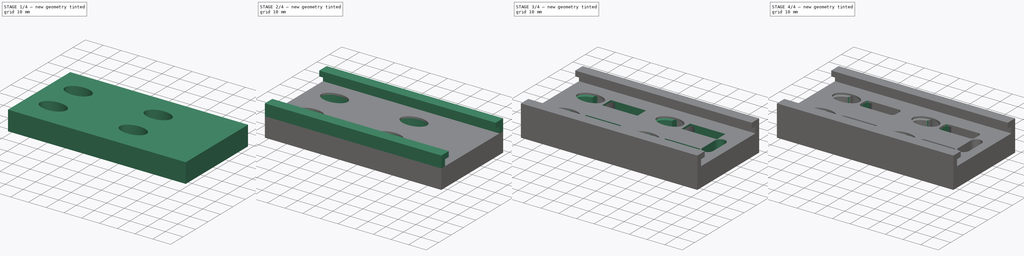
[diagram: build sequence overview — one tinted view per stage of 4, left to right]
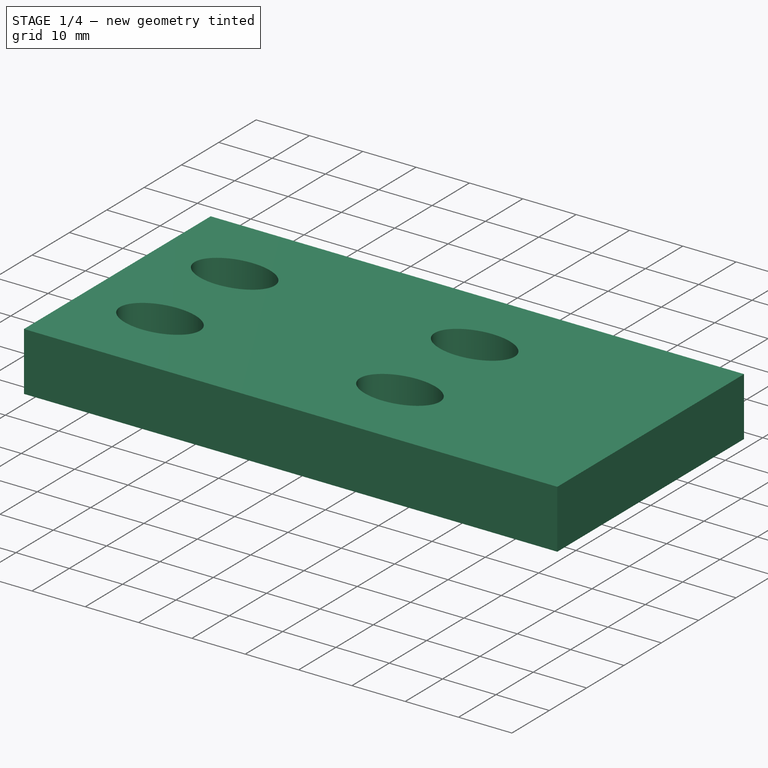
[diagram: stage 1 of 4 — iso view after this stage's code; geometry added in this stage tinted green]
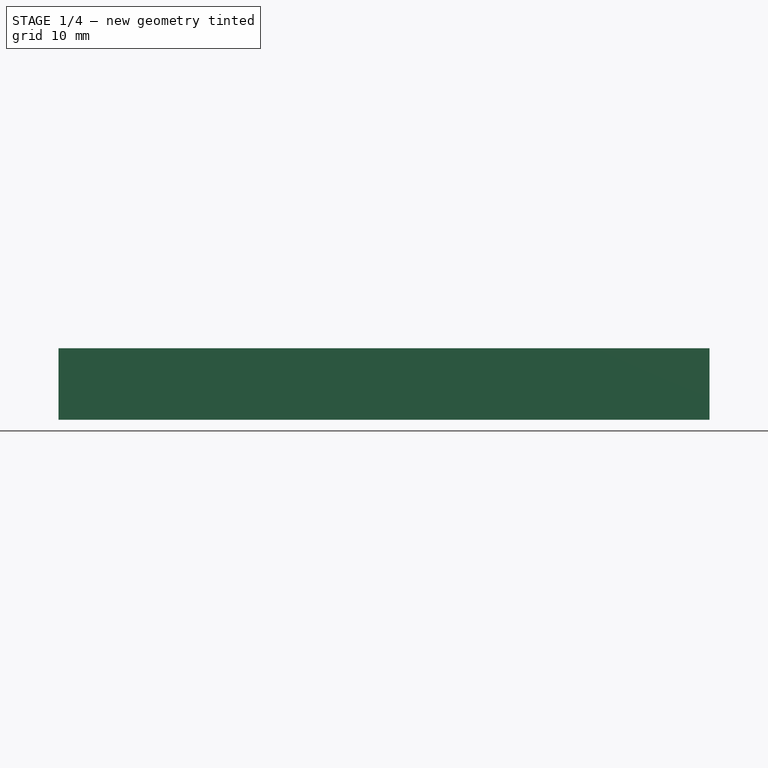
[diagram: stage 1 of 4 — front view after this stage's code; geometry added in this stage tinted green]
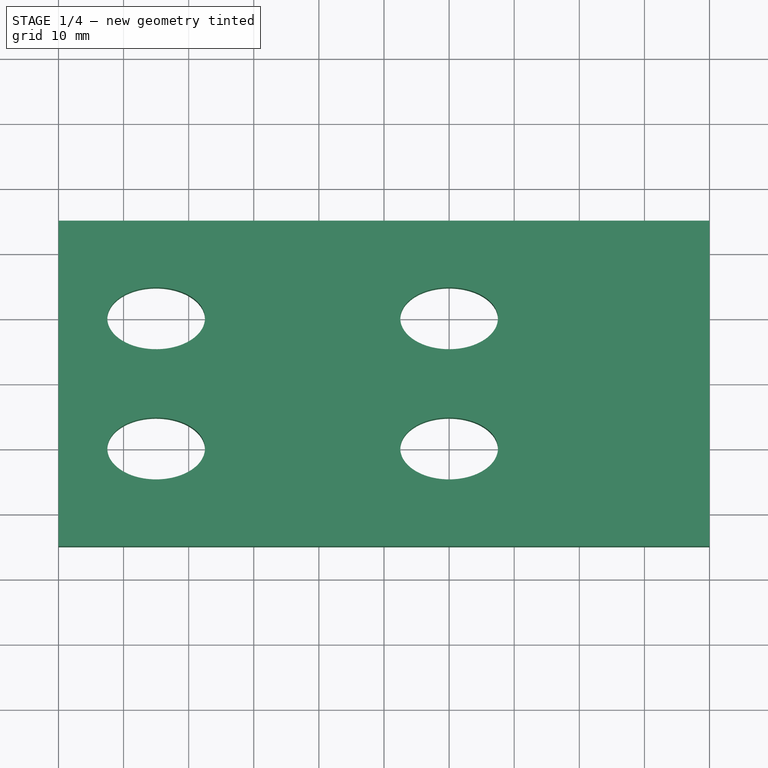
[diagram: stage 1 of 4 — top view after this stage's code; geometry added in this stage tinted green]
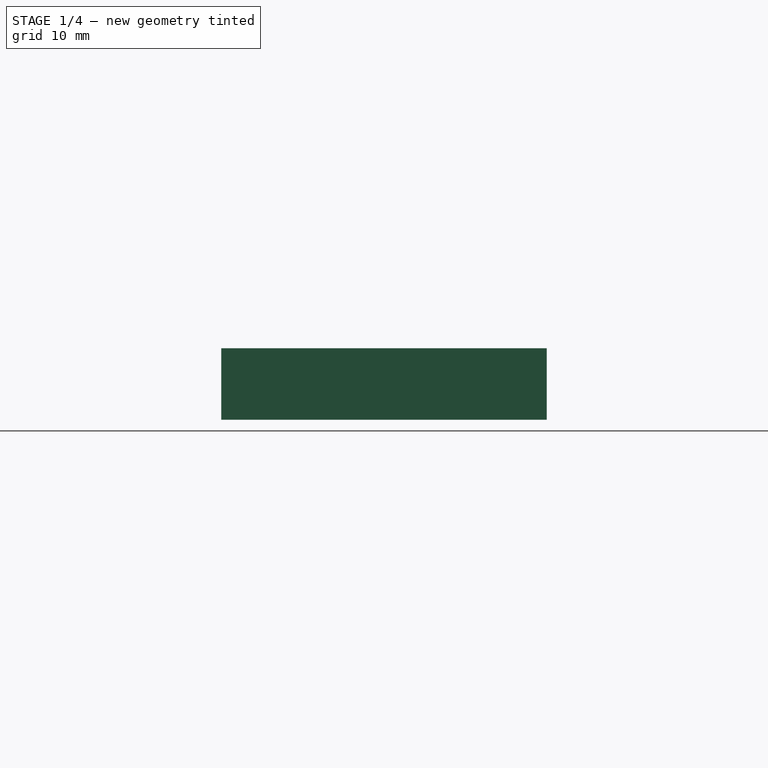
[diagram: stage 1 of 4 — right view after this stage's code; geometry added in this stage tinted green]
FCSTD DOCUMENT  (FreeCAD 0.21R33668 +26 (Git))
Label: bushing_jig_top3
License: All rights reserved
LicenseURL: https://en.wikipedia.org/wiki/All_rights_reserved
objects: Sketcher::SketchObject×8, PartDesign::Pad×4, PartDesign::Pocket×4, PartDesign::Plane×3, PartDesign::Mirrored×1, PartDesign::Fillet×1, PartDesign::Body×1
note: 31 computed .brp shape members not serialized (recipe doc carries the construction recipe); baked Part::Feature solids carry a one-line shape summary decoded from their .brp

FEATURE [Sketcher::SketchObject] Sketch
  FullyConstrained = true
  MapMode = 5
  Support = -> [XY_Plane]
  sketch-geometry (5):
    g0: LineSegment StartX=-50 StartY=-25 StartZ=0 EndX=-50 EndY=25 EndZ=0
    g1: LineSegment StartX=-50 StartY=25 StartZ=0 EndX=50 EndY=25 EndZ=0
    g2: LineSegment StartX=50 StartY=25 StartZ=0 EndX=50 EndY=-25 EndZ=0
    g3: LineSegment StartX=50 StartY=-25 StartZ=0 EndX=-50 EndY=-25 EndZ=0
    g4: GeomPoint X=0 Y=0 Z=0
  constraints (12):
    c: Coincident(g0,g1)
    c: Coincident(g1,g2)
    c: Coincident(g2,g3)
    c: Coincident(g3,g0)
    c: Horizontal(g1)
    c: Horizontal(g3)
    c: Vertical(g0)
    c: Vertical(g2)
    c: Symmetric(g1,g0,g4)
    c: Coincident(g4,g-1)
    c: DistanceX(g1,g1) = 100
    c: DistanceY(g2,g2) = 50
FEATURE [PartDesign::Pad] Pad
  Direction = (0,0,1)
  Length = 11
  Length2 = 10
  Profile = -> Sketch
  ReferenceAxis = -> Sketch [N_Axis]
  Reversed = true
  Type = 0
FEATURE [Sketcher::SketchObject] Sketch001
  FullyConstrained = true
  MapMode = 5
  Support = -> [XY_Plane]
  sketch-geometry (24):
    g0: Ellipse CenterX=-35 CenterY=10 CenterZ=0 NormalX=0 NormalY=0 NormalZ=1 MajorRadius=7.5 MinorRadius=4.75 AngleXU=0
    g1: LineSegment StartX=-27.5 StartY=10 StartZ=0 EndX=-42.5 EndY=10 EndZ=0
    g2: LineSegment StartX=-35 StartY=14.75 StartZ=0 EndX=-35 EndY=5.25 EndZ=0
    g3: GeomPoint X=-29.1959 Y=10 Z=0
    g4: GeomPoint X=-40.8041 Y=10 Z=0
    g5: Ellipse CenterX=10 CenterY=10 CenterZ=0 NormalX=0 NormalY=0 NormalZ=1 MajorRadius=7.5 MinorRadius=4.75 AngleXU=0
    g6: LineSegment StartX=17.5 StartY=10 StartZ=0 EndX=2.5 EndY=10 EndZ=0
    g7: LineSegment StartX=10 StartY=14.75 StartZ=0 EndX=10 EndY=5.25 EndZ=0
    g8: GeomPoint X=15.8041 Y=10 Z=0
    g9: GeomPoint X=4.19591 Y=10 Z=0
    g10: LineSegment StartX=-35 StartY=10 StartZ=0 EndX=10 EndY=10 EndZ=0
    g11: Ellipse CenterX=-35 CenterY=-10 CenterZ=0 NormalX=0 NormalY=0 NormalZ=1 MajorRadius=7.5 MinorRadius=4.75 AngleXU=0
    g12: LineSegment StartX=-27.5 StartY=-10 StartZ=0 EndX=-42.5 EndY=-10 EndZ=0
    g13: LineSegment StartX=-35 StartY=-5.25 StartZ=0 EndX=-35 EndY=-14.75 EndZ=0
    g14: GeomPoint X=-29.1959 Y=-10 Z=0
    g15: GeomPoint X=-40.8041 Y=-10 Z=0
    g16: LineSegment StartX=-35 StartY=10 StartZ=0 EndX=-35 EndY=-10 EndZ=0
    g17: Ellipse CenterX=10 CenterY=-10 CenterZ=0 NormalX=0 NormalY=0 NormalZ=1 MajorRadius=7.5 MinorRadius=4.75 AngleXU=0
    g18: LineSegment StartX=17.5 StartY=-10 StartZ=0 EndX=2.5 EndY=-10 EndZ=0
    g19: LineSegment StartX=10 StartY=-5.25 StartZ=0 EndX=10 EndY=-14.75 EndZ=0
    g20: GeomPoint X=15.8041 Y=-10 Z=0
    g21: GeomPoint X=4.19591 Y=-10 Z=0
    g22: LineSegment StartX=-35 StartY=-10 StartZ=0 EndX=10 EndY=-10 EndZ=0
    g23: GeomPoint X=10 Y=0 Z=0
  constraints (31):
    c: InternalAlignment(g1-g4 -> g0) x4
    c: Horizontal(g1)
    c: DistanceY(g2,g2) = 9.5
    c: DistanceX(g1,g1) = 15
    c: InternalAlignment(g6-g9 -> g5) x4
    c: Horizontal(g6)
    c: Equal(g2,g7) = 9.5
    c: Equal(g1,g6) = 15
    c: Coincident(g0,g10)
    c: Coincident(g5,g10)
    c: Distance(g10) = 45
    c: Angle(g10) = 0
    c: InternalAlignment(g12-g15 -> g11) x4
    c: Horizontal(g12)
    c: Equal(g2,g13) = 9.5
    c: Equal(g1,g12) = 15
    c: Coincident(g0,g16)
    c: Coincident(g11,g16)
    c: Distance(g16) = 20
    c: Perpendicular(g16,g10)
    c: InternalAlignment(g18-g21 -> g17) x4
    c: Horizontal(g18)
    c: Equal(g2,g19) = 9.5
    c: Equal(g1,g18) = 15
    c: Coincident(g11,g22)
    c: Coincident(g17,g22)
    c: Equal(g10,g22)
    c: Parallel(g22,g10)
    c: PointOnObject(g23,g-1)
    c: Symmetric(g5,g17,g23)
    c: DistanceX(g-1,g5) = 10
FEATURE [PartDesign::Plane] DatumPlane
  AttachmentOffset = pos=(0,0,-11) rot=(0,0,1;0rad)
  Length = 114.142
  MapMode = 5
  Placement = pos=(0,0,-11) rot=(0,0,1;0rad)
  ResizeMode = 0
  Support = -> [XY_Plane]
  Width = 64.1421
FEATURE [Sketcher::SketchObject] Sketch003
  FullyConstrained = true
  MapMode = 5
  Placement = pos=(0,0,-11) rot=(0,0,1;0rad)
  Support = -> [DatumPlane]
  sketch-geometry (24):
    g0: Ellipse CenterX=-35 CenterY=10 CenterZ=0 NormalX=0 NormalY=0 NormalZ=1 MajorRadius=12.5 MinorRadius=8.5 AngleXU=0
    g1: LineSegment StartX=-22.5 StartY=10 StartZ=0 EndX=-47.5 EndY=10 EndZ=0
    g2: LineSegment StartX=-35 StartY=18.5 StartZ=0 EndX=-35 EndY=1.5 EndZ=0
    g3: GeomPoint X=-25.8348 Y=10 Z=0
    g4: GeomPoint X=-44.1652 Y=10 Z=0
    g5: Ellipse CenterX=10 CenterY=10 CenterZ=0 NormalX=0 NormalY=0 NormalZ=1 MajorRadius=12.5 MinorRadius=8.5 AngleXU=0
    g6: LineSegment StartX=22.5 StartY=10 StartZ=0 EndX=-2.5 EndY=10 EndZ=0
    g7: LineSegment StartX=10 StartY=18.5 StartZ=0 EndX=10 EndY=1.5 EndZ=0
    g8: GeomPoint X=19.1652 Y=10 Z=0
    g9: GeomPoint X=0.834849 Y=10 Z=0
    g10: LineSegment StartX=-35 StartY=10 StartZ=0 EndX=10 EndY=10 EndZ=0
    g11: Ellipse CenterX=-35 CenterY=-10 CenterZ=0 NormalX=0 NormalY=0 NormalZ=1 MajorRadius=12.5 MinorRadius=8.5 AngleXU=0
    g12: LineSegment StartX=-22.5 StartY=-10 StartZ=0 EndX=-47.5 EndY=-10 EndZ=0
    g13: LineSegment StartX=-35 StartY=-1.5 StartZ=0 EndX=-35 EndY=-18.5 EndZ=0
    g14: GeomPoint X=-25.8348 Y=-10 Z=0
    g15: GeomPoint X=-44.1652 Y=-10 Z=0
    g16: LineSegment StartX=-35 StartY=10 StartZ=0 EndX=-35 EndY=-10 EndZ=0
    g17: Ellipse CenterX=10 CenterY=-10 CenterZ=0 NormalX=0 NormalY=0 NormalZ=1 MajorRadius=12.5 MinorRadius=8.5 AngleXU=0
    g18: LineSegment StartX=22.5 StartY=-10 StartZ=0 EndX=-2.5 EndY=-10 EndZ=0
    g19: LineSegment StartX=10 StartY=-1.5 StartZ=0 EndX=10 EndY=-18.5 EndZ=0
    g20: GeomPoint X=19.1652 Y=-10 Z=0
    g21: GeomPoint X=0.834849 Y=-10 Z=0
    g22: LineSegment StartX=-35 StartY=-10 StartZ=0 EndX=10 EndY=-10 EndZ=0
    g23: GeomPoint X=10 Y=0 Z=0
  constraints (31):
    c: InternalAlignment(g1-g4 -> g0) x4
    c: Horizontal(g1)
    c: DistanceX(g1,g1) = 25
    c: DistanceY(g2,g2) = 17
    c: InternalAlignment(g6-g9 -> g5) x4
    c: Horizontal(g6)
    c: Equal(g1,g6) = 23
    c: Equal(g2,g7) = 16.5
    c: Coincident(g0,g10)
    c: Coincident(g5,g10)
    c: Distance(g10) = 45
    c: Angle(g10) = 0
    c: InternalAlignment(g12-g15 -> g11) x4
    c: Horizontal(g12)
    c: Equal(g1,g12) = 23
    c: Equal(g2,g13) = 16.5
    c: Coincident(g0,g16)
    c: Coincident(g11,g16)
    c: Distance(g16) = 20
    c: Perpendicular(g16,g10)
    c: InternalAlignment(g18-g21 -> g17) x4
    c: Horizontal(g18)
    c: Equal(g1,g18) = 23
    c: Equal(g2,g19) = 16.5
    c: Coincident(g11,g22)
    c: Coincident(g17,g22)
    c: Equal(g10,g22)
    c: Parallel(g22,g10)
    c: PointOnObject(g23,g-1)
    c: Symmetric(g5,g17,g23)
    c: DistanceX(g-1,g5) = 10
FEATURE [Sketcher::SketchObject] Sketch005
  FullyConstrained = true
  MapMode = 5
  Placement = pos=(0,0,0) rot=(0.57735,0.57735,0.57735;2.0944rad)
  Support = -> [YZ_Plane]
  sketch-geometry (6):
    g0: LineSegment StartX=25 StartY=0 StartZ=0 EndX=25 EndY=6.6 EndZ=0
    g1: LineSegment StartX=25 StartY=6.6 StartZ=0 EndX=19 EndY=6.6 EndZ=0
    g2: LineSegment StartX=19 StartY=6.6 StartZ=0 EndX=19 EndY=3.6 EndZ=0
    g3: LineSegment StartX=19 StartY=3.6 StartZ=0 EndX=22 EndY=3.6 EndZ=0
    g4: LineSegment StartX=22 StartY=3.6 StartZ=0 EndX=22 EndY=0 EndZ=0
    g5: LineSegment StartX=22 StartY=0 StartZ=0 EndX=25 EndY=0 EndZ=0
  constraints (19):
    c: PointOnObject(g0,g-1)
    c: Vertical(g0)
    c: Horizontal(g1)
    c: Coincident(g2,g1)
    c: Vertical(g2)
    c: Horizontal(g3)
    c: PointOnObject(g4,g-1)
    c: Coincident(g5,g4)
    c: Coincident(g5,g0)
    c: Vertical(g4)
    c: Coincident(g3,g4)
    c: Coincident(g1,g0)
    c: DistanceY(g2,g2) = 3
    c: Coincident(g3,g2)
    c: DistanceX(g5,g5) = 3
    c: DistanceX(g1,g1) = 6
    c: DistanceX(g-1,g0) = 25
    c: DistanceY(g4,g4) = 3.6
    c: DistanceY(g0,g0) = 6.6
FEATURE [PartDesign::Pocket] Pocket
  BaseFeature = -> Pad
  Direction = (0,0,-1)
  Length = 16
  Length2 = 5
  Profile = -> Sketch001
  ReferenceAxis = -> Sketch001 [N_Axis]
  Type = 0
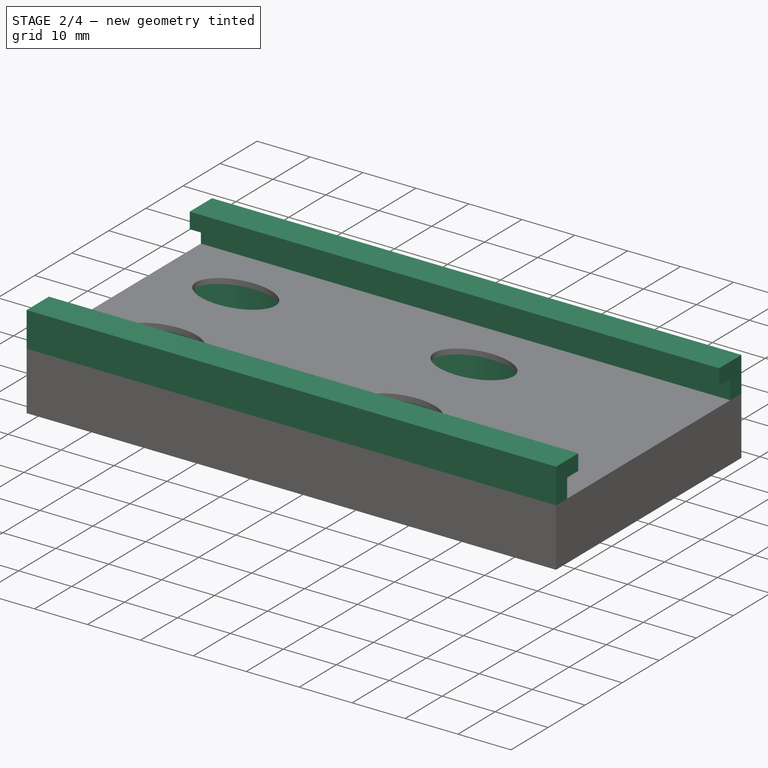
[diagram: stage 2 of 4 — iso view after this stage's code; geometry added in this stage tinted green]
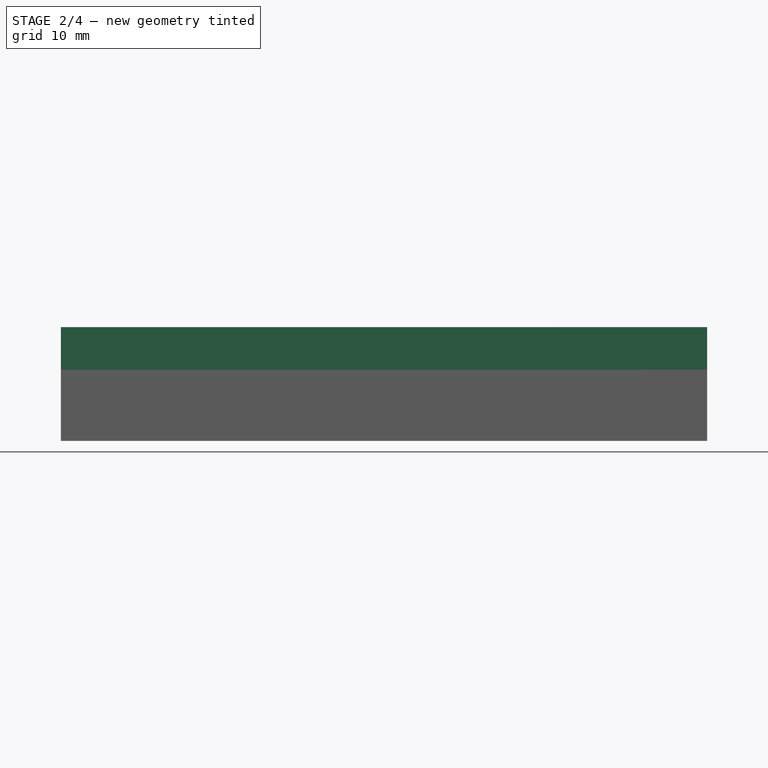
[diagram: stage 2 of 4 — front view after this stage's code; geometry added in this stage tinted green]
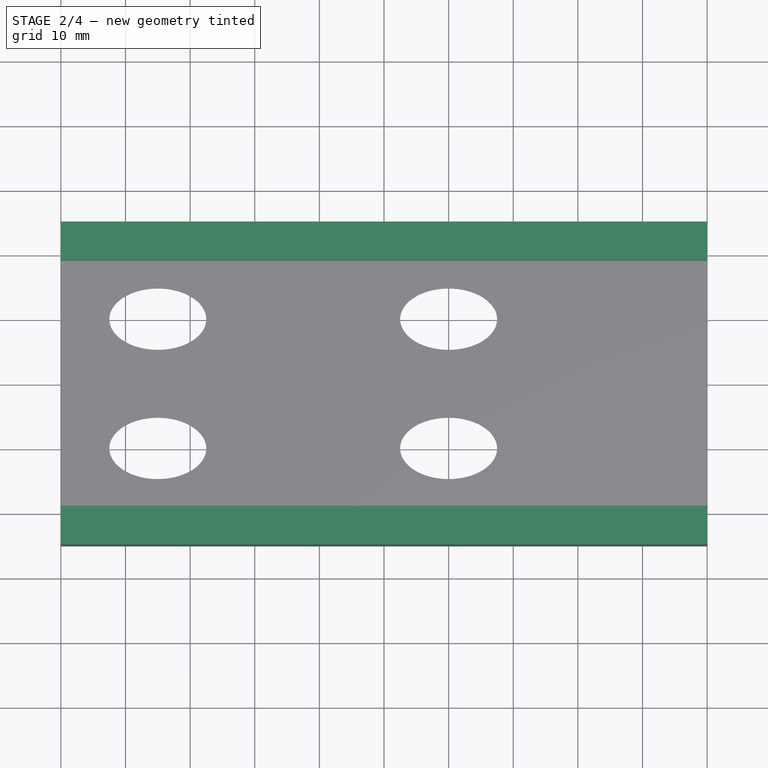
[diagram: stage 2 of 4 — top view after this stage's code; geometry added in this stage tinted green]
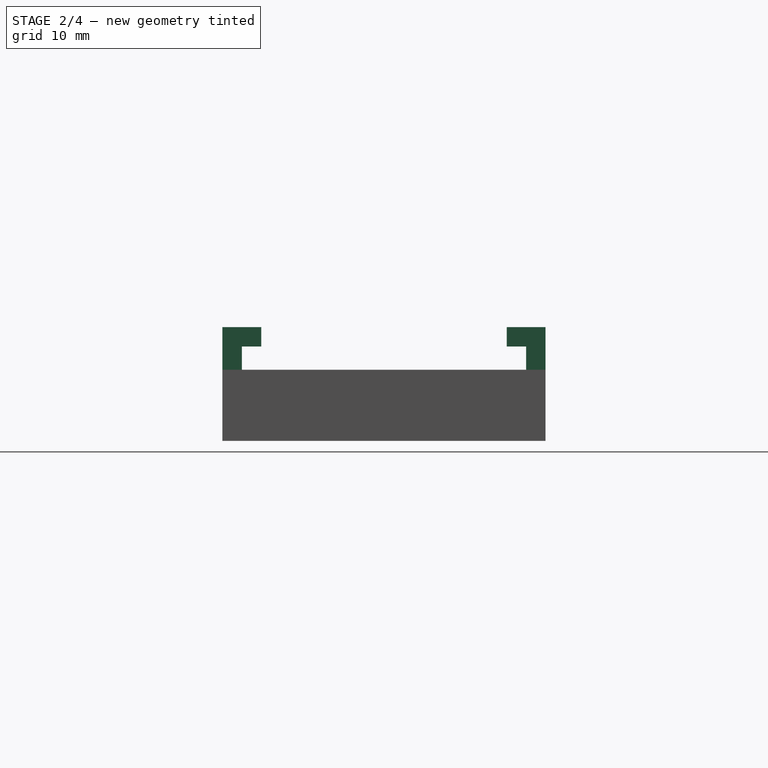
[diagram: stage 2 of 4 — right view after this stage's code; geometry added in this stage tinted green]
FEATURE [PartDesign::Pocket] Pocket001
  BaseFeature = -> Pocket
  Direction = (0,0,-1)
  Length = 10
  Length2 = 5
  Profile = -> Sketch003
  ReferenceAxis = -> Sketch003 [N_Axis]
  Reversed = true
  Type = 0
FEATURE [PartDesign::Pad] Pad001
  BaseFeature = -> Pocket001
  Direction = (1,-2e-16,3e-16)
  Length = 100
  Length2 = 10
  Midplane = true
  Profile = -> Sketch005
  ReferenceAxis = -> Sketch005 [N_Axis]
  Type = 0
FEATURE [PartDesign::Mirrored] Mirrored
  BaseFeature = -> Pad001
  MirrorPlane = -> Sketch005 [V_Axis]
  Originals = -> [Pad001]
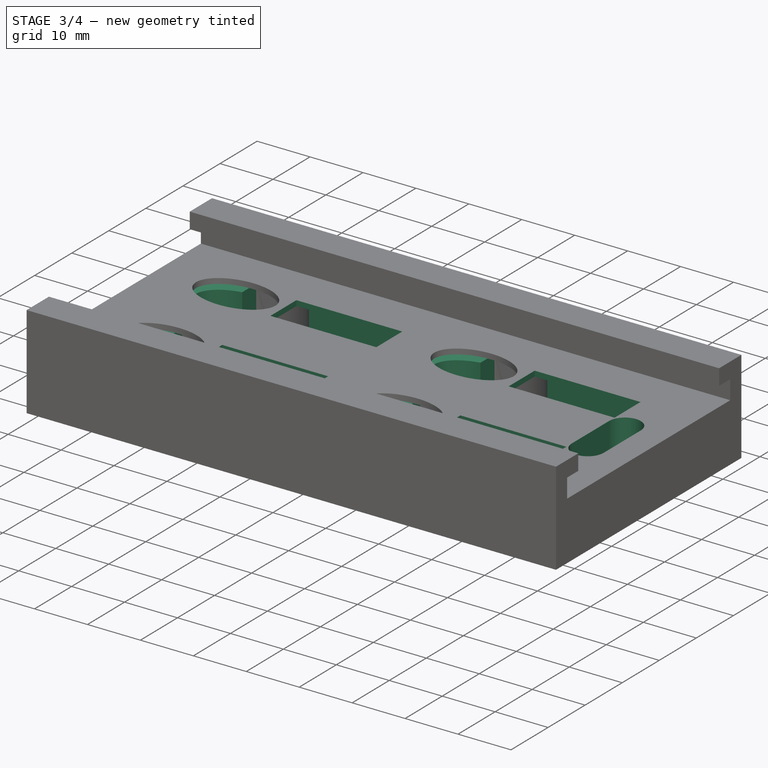
[diagram: stage 3 of 4 — iso view after this stage's code; geometry added in this stage tinted green]
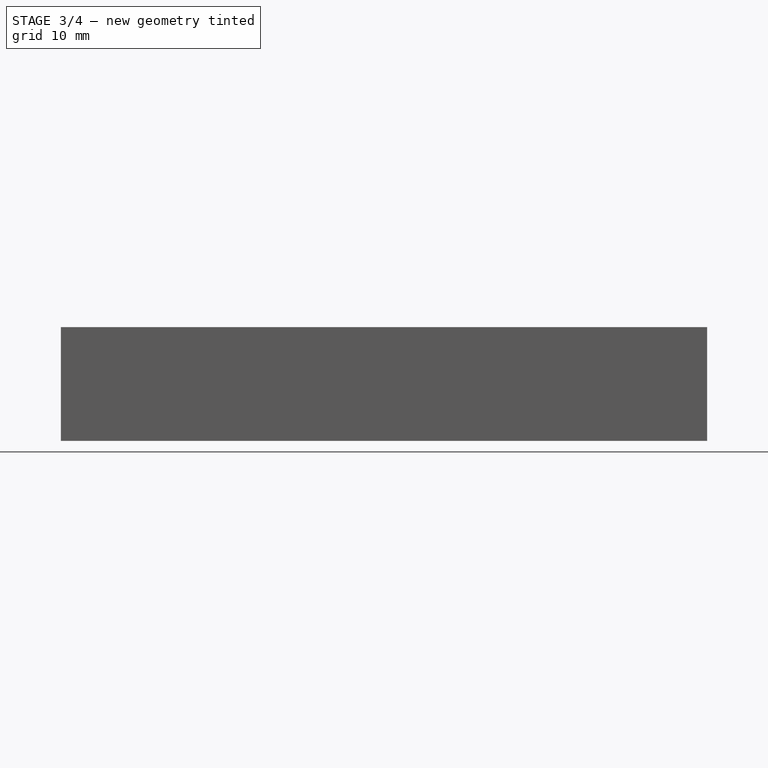
[diagram: stage 3 of 4 — front view after this stage's code; geometry added in this stage tinted green]
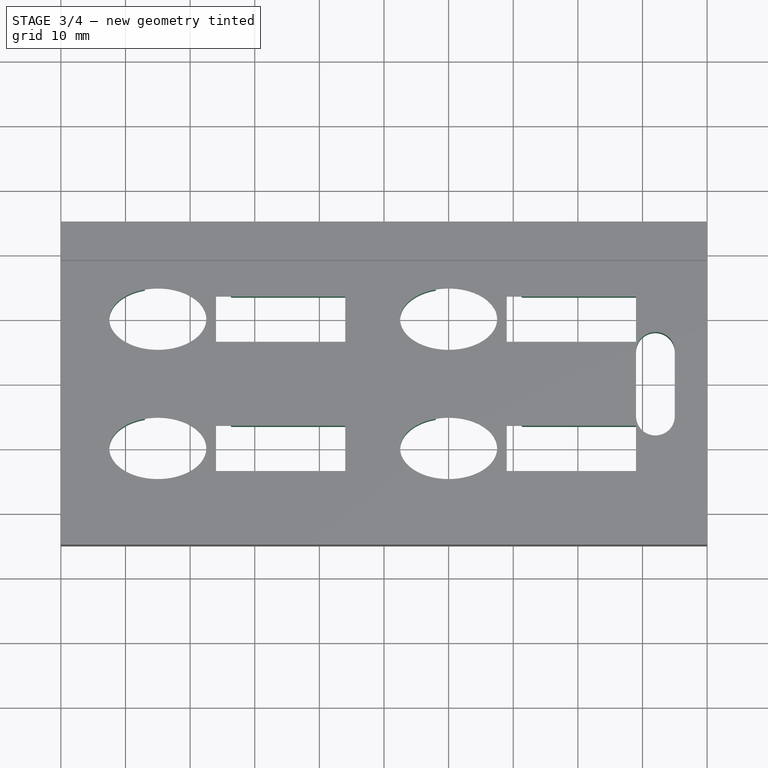
[diagram: stage 3 of 4 — top view after this stage's code; geometry added in this stage tinted green]
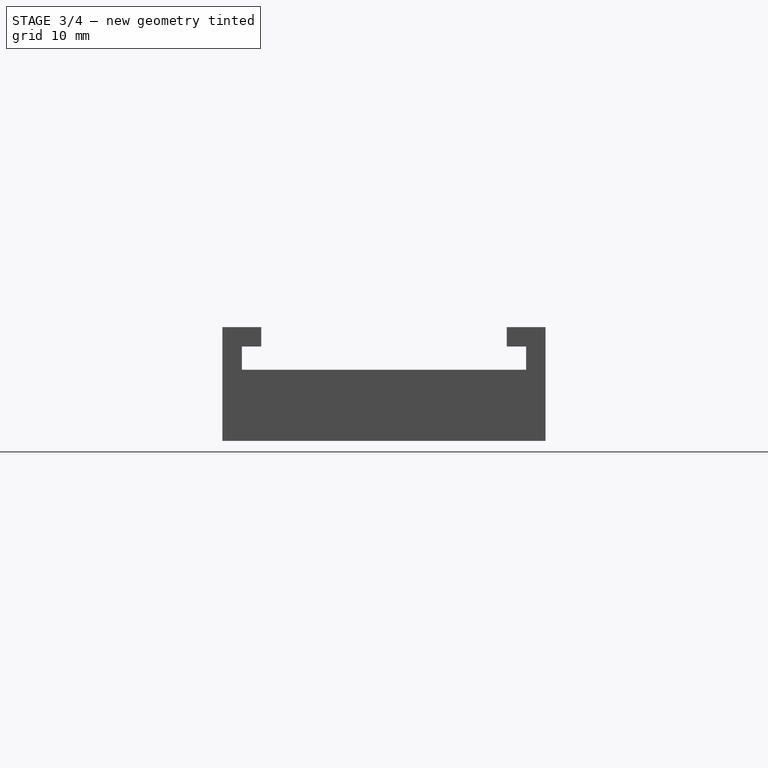
[diagram: stage 3 of 4 — right view after this stage's code; geometry added in this stage tinted green]
FEATURE [Sketcher::SketchObject] Sketch006
  FullyConstrained = true
  MapMode = 5
  Support = -> [XY_Plane]
  sketch-geometry (5):
    g0: ArcOfCircle CenterX=42 CenterY=5 CenterZ=0 NormalX=0 NormalY=0 NormalZ=1 AngleXU=0 Radius=3 StartAngle=1e-16 EndAngle=3.14159
    g1: ArcOfCircle CenterX=42 CenterY=-5 CenterZ=0 NormalX=0 NormalY=0 NormalZ=1 AngleXU=0 Radius=3 StartAngle=3.14159 EndAngle=6.28319
    g2: LineSegment StartX=39 StartY=5 StartZ=0 EndX=39 EndY=-5 EndZ=0
    g3: LineSegment StartX=45 StartY=-5 StartZ=0 EndX=45 EndY=5 EndZ=0
    g4: GeomPoint X=42 Y=0 Z=0
  constraints (11):
    c: Tangent(g0,g2) = -1.5708
    c: Tangent(g2,g1) = -1.5708
    c: Tangent(g1,g3) = -1.5708
    c: Tangent(g3,g0) = -1.5708
    c: Equal(g0,g1)
    c: Vertical(g2)
    c: DistanceY(g1,g0) = 10
    c: Radius(g0) = 3
    c: DistanceX(g-1,g1) = 42
    c: PointOnObject(g4,g-1)
    c: Symmetric(g0,g1,g4)
FEATURE [PartDesign::Pocket] Pocket002
  BaseFeature = -> Mirrored
  Direction = (0,0,-1)
  Length = 5
  Length2 = 5
  Profile = -> Sketch006
  ReferenceAxis = -> Sketch006 [N_Axis]
  Type = 1
FEATURE [PartDesign::Plane] DatumPlane001
  AttachmentOffset = pos=(0,0,-2) rot=(0,0,1;0rad)
  Length = 114.142
  MapMode = 5
  Placement = pos=(0,0,-2) rot=(0,0,1;0rad)
  ResizeMode = 0
  Support = -> [XY_Plane]
  Width = 64.1421
FEATURE [Sketcher::SketchObject] Sketch007
  FullyConstrained = true
  MapMode = 5
  Placement = pos=(0,0,-2) rot=(0,0,1;0rad)
  Support = -> [DatumPlane001]
  sketch-geometry (52):
    g0: ArcOfEllipse CenterX=-35 CenterY=10 CenterZ=0 NormalX=0 NormalY=0 NormalZ=1 MajorRadius=12.5 MinorRadius=8.5 AngleXU=0 StartAngle=1.73149 EndAngle=4.5517
    g1: LineSegment StartX=-22.5 StartY=10 StartZ=0 EndX=-47.5 EndY=10 EndZ=0
    g2: LineSegment StartX=-35 StartY=18.5 StartZ=0 EndX=-35 EndY=1.5 EndZ=0
    g3: GeomPoint X=-25.8348 Y=10 Z=0
    g4: GeomPoint X=-44.1652 Y=10 Z=0
    g5: ArcOfEllipse CenterX=-35 CenterY=10 CenterZ=0 NormalX=0 NormalY=0 NormalZ=1 MajorRadius=7.5 MinorRadius=4.75 AngleXU=0 StartAngle=1.84073 EndAngle=4.44246
    g6: LineSegment StartX=-27.5 StartY=10 StartZ=0 EndX=-42.5 EndY=10 EndZ=0
    g7: LineSegment StartX=-35 StartY=14.75 StartZ=0 EndX=-35 EndY=5.25 EndZ=0
    g8: GeomPoint X=-29.1959 Y=10 Z=0
    g9: GeomPoint X=-40.8041 Y=10 Z=0
    g10: LineSegment StartX=-37 StartY=18.3905 StartZ=0 EndX=-37 EndY=14.578 EndZ=0
    g11: LineSegment StartX=-37 StartY=5.422 StartZ=0 EndX=-37 EndY=1.60951 EndZ=0
    g12: ArcOfEllipse CenterX=10 CenterY=10 CenterZ=0 NormalX=0 NormalY=0 NormalZ=1 MajorRadius=12.5 MinorRadius=8.5 AngleXU=0 StartAngle=1.73149 EndAngle=4.5517
    g13: LineSegment StartX=22.5 StartY=10 StartZ=0 EndX=-2.5 EndY=10 EndZ=0
    g14: LineSegment StartX=10 StartY=18.5 StartZ=0 EndX=10 EndY=1.5 EndZ=0
    g15: GeomPoint X=19.1652 Y=10 Z=0
    g16: GeomPoint X=0.834849 Y=10 Z=0
    g17: ArcOfEllipse CenterX=10 CenterY=10 CenterZ=0 NormalX=0 NormalY=0 NormalZ=1 MajorRadius=7.5 MinorRadius=4.75 AngleXU=0 StartAngle=1.84073 EndAngle=4.44246
    g18: LineSegment StartX=17.5 StartY=10 StartZ=0 EndX=2.5 EndY=10 EndZ=0
    g19: LineSegment StartX=10 StartY=14.75 StartZ=0 EndX=10 EndY=5.25 EndZ=0
    g20: GeomPoint X=15.8041 Y=10 Z=0
    g21: GeomPoint X=4.19591 Y=10 Z=0
    g22: LineSegment StartX=8 StartY=18.3905 StartZ=0 EndX=8 EndY=14.578 EndZ=0
    g23: LineSegment StartX=8 StartY=5.422 StartZ=0 EndX=8 EndY=1.60951 EndZ=0
    g24: LineSegment StartX=-37 StartY=18.3905 StartZ=0 EndX=8 EndY=18.3905 EndZ=0
    g25: ArcOfEllipse CenterX=-35 CenterY=-10 CenterZ=0 NormalX=0 NormalY=0 NormalZ=1 MajorRadius=12.5 MinorRadius=8.5 AngleXU=0 StartAngle=1.73149 EndAngle=4.5517
    g26: LineSegment StartX=-22.5 StartY=-10 StartZ=0 EndX=-47.5 EndY=-10 EndZ=0
    g27: LineSegment StartX=-35 StartY=-1.5 StartZ=0 EndX=-35 EndY=-18.5 EndZ=0
    g28: GeomPoint X=-25.8348 Y=-10 Z=0
    g29: GeomPoint X=-44.1652 Y=-10 Z=0
    g30: ArcOfEllipse CenterX=-35 CenterY=-10 CenterZ=0 NormalX=0 NormalY=0 NormalZ=1 MajorRadius=7.5 MinorRadius=4.75 AngleXU=0 StartAngle=1.84073 EndAngle=4.44246
    g31: LineSegment StartX=-27.5 StartY=-10 StartZ=0 EndX=-42.5 EndY=-10 EndZ=0
    g32: LineSegment StartX=-35 StartY=-5.25 StartZ=0 EndX=-35 EndY=-14.75 EndZ=0
    g33: GeomPoint X=-29.1959 Y=-10 Z=0
    g34: GeomPoint X=-40.8041 Y=-10 Z=0
    g35: LineSegment StartX=-37 StartY=-1.60951 StartZ=0 EndX=-37 EndY=-5.422 EndZ=0
    g36: LineSegment StartX=-37 StartY=-14.578 StartZ=0 EndX=-37 EndY=-18.3905 EndZ=0
    g37: LineSegment StartX=-37 StartY=18.3905 StartZ=0 EndX=-37 EndY=-1.60951 EndZ=0
    g38: ArcOfEllipse CenterX=10 CenterY=-10 CenterZ=0 NormalX=0 NormalY=0 NormalZ=1 MajorRadius=12.5 MinorRadius=8.5 AngleXU=0 StartAngle=1.73149 EndAngle=4.5517
    g39: LineSegment StartX=22.5 StartY=-10 StartZ=0 EndX=-2.5 EndY=-10 EndZ=0
    g40: LineSegment StartX=10 StartY=-1.5 StartZ=0 EndX=10 EndY=-18.5 EndZ=0
    g41: GeomPoint X=19.1652 Y=-10 Z=0
    g42: GeomPoint X=0.834849 Y=-10 Z=0
    g43: ArcOfEllipse CenterX=10 CenterY=-10 CenterZ=0 NormalX=0 NormalY=0 NormalZ=1 MajorRadius=7.5 MinorRadius=4.75 AngleXU=0 StartAngle=1.84073 EndAngle=4.44246
    g44: LineSegment StartX=17.5 StartY=-10 StartZ=0 EndX=2.5 EndY=-10 EndZ=0
    g45: LineSegment StartX=10 StartY=-5.25 StartZ=0 EndX=10 EndY=-14.75 EndZ=0
    g46: GeomPoint X=15.8041 Y=-10 Z=0
    g47: GeomPoint X=4.19591 Y=-10 Z=0
    g48: LineSegment StartX=8 StartY=-1.60951 StartZ=0 EndX=8 EndY=-5.422 EndZ=0
    g49: LineSegment StartX=8 StartY=-14.578 StartZ=0 EndX=8 EndY=-18.3905 EndZ=0
    g50: LineSegment StartX=-37 StartY=-1.60951 StartZ=0 EndX=8 EndY=-1.60951 EndZ=0
    g51: GeomPoint X=8 Y=0 Z=0
  constraints (83):
    c: InternalAlignment(g1-g4 -> g0) x4
    c: Horizontal(g1)
    c: DistanceY(g2,g2) = 17
    c: DistanceX(g1,g1) = 25
    c: InternalAlignment(g6-g9 -> g5) x4
    c: Coincident(g5,g0)
    c: DistanceX(g6,g6) = 15
    c: DistanceY(g7,g7) = 9.5
    c: Vertical(g10)
    c: DistanceX(g11,g2) = 2
    c: Coincident(g0,g10)
    c: Coincident(g0,g11)
    c: Coincident(g11,g5)
    c: Coincident(g10,g5)
    c: Vertical(g11)
    c: Vertical(g5,g5)
    c: Horizontal(g6)
    c: InternalAlignment(g13-g16 -> g12) x4
    c: Horizontal(g13)
    c: Equal(g2,g14) = 16.5
    c: Equal(g1,g13) = 23
    c: InternalAlignment(g18-g21 -> g17) x4
    c: Coincident(g17,g12)
    c: Equal(g6,g18) = 15
    c: Equal(g7,g19) = 9.5
    c: Vertical(g22)
    c: DistanceX(g23,g14) = 2
    c: Coincident(g12,g22)
    c: Coincident(g12,g23)
    c: Coincident(g23,g17)
    c: Coincident(g22,g17)
    c: Vertical(g23)
    c: Vertical(g17,g17)
    c: Horizontal(g18)
    c: Coincident(g0,g24)
    c: Coincident(g12,g24)
    c: Distance(g24) = 45
    c: Angle(g24) = 0
    c: InternalAlignment(g26-g29 -> g25) x4
    c: Horizontal(g26)
    c: Equal(g2,g27) = 16.5
    c: Equal(g1,g26) = 23
    c: InternalAlignment(g31-g34 -> g30) x4
    c: Coincident(g30,g25)
    c: Equal(g6,g31) = 15
    c: Equal(g7,g32) = 9.5
    c: Vertical(g35)
    c: DistanceX(g36,g27) = 2
    c: Coincident(g25,g35)
    c: Coincident(g25,g36)
    c: Coincident(g36,g30)
    c: Coincident(g35,g30)
    c: Vertical(g36)
    c: Vertical(g30,g30)
    c: Horizontal(g31)
    c: Coincident(g0,g37)
    c: Coincident(g25,g37)
    c: Distance(g37) = 20
    c: Perpendicular(g37,g24)
    c: InternalAlignment(g39-g42 -> g38) x4
    c: Horizontal(g39)
    c: Equal(g2,g40) = 16.5
    c: Equal(g1,g39) = 23
    c: InternalAlignment(g44-g47 -> g43) x4
    c: Coincident(g43,g38)
    c: Equal(g6,g44) = 15
    c: Equal(g7,g45) = 9.5
    c: Vertical(g48)
    c: DistanceX(g49,g40) = 2
    c: Coincident(g38,g48)
    c: Coincident(g38,g49)
    c: Coincident(g49,g43)
    c: Coincident(g48,g43)
    c: Vertical(g49)
    c: Vertical(g43,g43)
    c: Horizontal(g44)
    c: Coincident(g25,g50)
    c: Coincident(g38,g50)
    c: Equal(g24,g50)
    c: Parallel(g50,g24)
    c: PointOnObject(g51,g-1)
    c: Symmetric(g12,g38,g51)
    c: DistanceX(g-1,g12) = 10
FEATURE [PartDesign::Plane] DatumPlane002
  AttachmentOffset = pos=(0,0,10) rot=(0,0,1;0rad)
  Length = 114.142
  MapMode = 5
  Placement = pos=(0,-10,-2.2e-15) rot=(1,0,0;1.5708rad)
  ResizeMode = 0
  Support = -> [XZ_Plane]
  Width = 64.1421
FEATURE [PartDesign::Pad] Pad002
  BaseFeature = -> Pocket002
  Direction = (0,0,1)
  Length = 9
  Length2 = 10
  Profile = -> Sketch007
  ReferenceAxis = -> Sketch007 [N_Axis]
  Refine = true
  Reversed = true
  Type = 0
FEATURE [Sketcher::SketchObject] Sketch008
  FullyConstrained = true
  MapMode = 5
  Placement = pos=(0,0,-5) rot=(1,0,0;3.14159rad)
  sketch-geometry (20):
    g0: LineSegment StartX=-26 StartY=13.5 StartZ=0 EndX=-6 EndY=13.5 EndZ=0
    g1: LineSegment StartX=-6 StartY=13.5 StartZ=0 EndX=-6 EndY=6.5 EndZ=0
    g2: LineSegment StartX=-6 StartY=6.5 StartZ=0 EndX=-26 EndY=6.5 EndZ=0
    g3: LineSegment StartX=-26 StartY=6.5 StartZ=0 EndX=-26 EndY=13.5 EndZ=0
    g4: LineSegment StartX=19 StartY=13.5 StartZ=0 EndX=39 EndY=13.5 EndZ=0
    g5: LineSegment StartX=39 StartY=13.5 StartZ=0 EndX=39 EndY=6.5 EndZ=0
    g6: LineSegment StartX=39 StartY=6.5 StartZ=0 EndX=19 EndY=6.5 EndZ=0
    g7: LineSegment StartX=19 StartY=6.5 StartZ=0 EndX=19 EndY=13.5 EndZ=0
    g8: LineSegment StartX=-26 StartY=13.5 StartZ=0 EndX=19 EndY=13.5 EndZ=0
    g9: LineSegment StartX=-26 StartY=-6.5 StartZ=0 EndX=-6 EndY=-6.5 EndZ=0
    g10: LineSegment StartX=-6 StartY=-6.5 StartZ=0 EndX=-6 EndY=-13.5 EndZ=0
    g11: LineSegment StartX=-6 StartY=-13.5 StartZ=0 EndX=-26 EndY=-13.5 EndZ=0
    g12: LineSegment StartX=-26 StartY=-13.5 StartZ=0 EndX=-26 EndY=-6.5 EndZ=0
    g13: LineSegment StartX=-26 StartY=13.5 StartZ=0 EndX=-26 EndY=-6.5 EndZ=0
    g14: LineSegment StartX=19 StartY=-6.5 StartZ=0 EndX=39 EndY=-6.5 EndZ=0
    g15: LineSegment StartX=39 StartY=-6.5 StartZ=0 EndX=39 EndY=-13.5 EndZ=0
    g16: LineSegment StartX=39 StartY=-13.5 StartZ=0 EndX=19 EndY=-13.5 EndZ=0
    g17: LineSegment StartX=19 StartY=-13.5 StartZ=0 EndX=19 EndY=-6.5 EndZ=0
    g18: LineSegment StartX=-26 StartY=-6.5 StartZ=0 EndX=19 EndY=-6.5 EndZ=0
    g19: GeomPoint X=-6 Y=10 Z=0
  constraints (55):
    c: Coincident(g0,g1)
    c: Coincident(g1,g2)
    c: Coincident(g2,g3)
    c: Coincident(g3,g0)
    c: Horizontal(g0)
    c: Horizontal(g2)
    c: Vertical(g1)
    c: Vertical(g3)
    c: DistanceY(g1,g1) = 7
    c: DistanceX(g0,g0) = 20
    c: Coincident(g4,g5)
    c: Coincident(g5,g6)
    c: Coincident(g6,g7)
    c: Coincident(g7,g4)
    c: Horizontal(g4)
    c: Horizontal(g6)
    c: Vertical(g5)
    c: Vertical(g7)
    c: Equal(g1,g5) = 0.7
    c: Equal(g0,g4) = 24.5
    c: Coincident(g0,g8)
    c: Coincident(g4,g8)
    c: Distance(g8) = 45
    c: Angle(g8) = 0
    c: Coincident(g9,g10)
    c: Coincident(g10,g11)
    c: Coincident(g11,g12)
    c: Coincident(g12,g9)
    c: Horizontal(g9)
    c: Horizontal(g11)
    c: Vertical(g10)
    c: Vertical(g12)
    c: Equal(g1,g10) = 0.7
    c: Equal(g0,g9) = 24.5
    c: Coincident(g0,g13)
    c: Coincident(g9,g13)
    c: Distance(g13) = 20
    c: Perpendicular(g13,g8)
    c: Coincident(g14,g15)
    c: Coincident(g15,g16)
    c: Coincident(g16,g17)
    c: Coincident(g17,g14)
    c: Horizontal(g14)
    c: Horizontal(g16)
    c: Vertical(g15)
    c: Vertical(g17)
    c: Equal(g1,g15) = 0.7
    c: Equal(g0,g14) = 24.5
    c: Coincident(g9,g18)
    c: Coincident(g14,g18)
    c: Equal(g8,g18)
    c: Parallel(g18,g8)
    c: Symmetric(g0,g1,g19)
    c: DistanceY(g-1,g19) = 10
    c: DistanceX(g2,g-1) = 26
FEATURE [PartDesign::Pocket] Pocket003
  BaseFeature = -> Pad002
  Direction = (0,0,1)
  Length = 5
  Length2 = 5
  Midplane = true
  Profile = -> Sketch008
  ReferenceAxis = -> Sketch008 [N_Axis]
  Type = 1
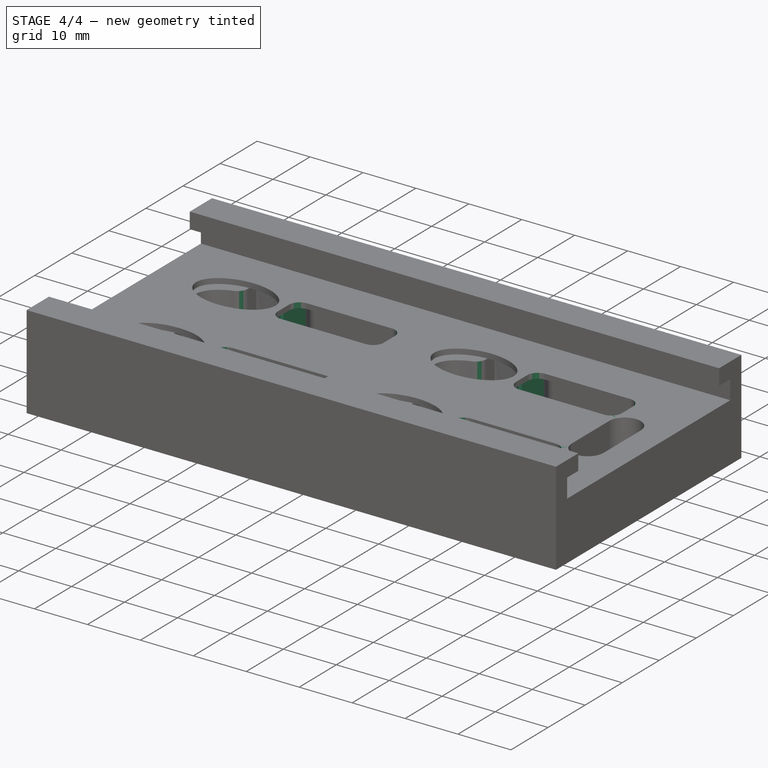
[diagram: stage 4 of 4 — iso view after this stage's code; geometry added in this stage tinted green]
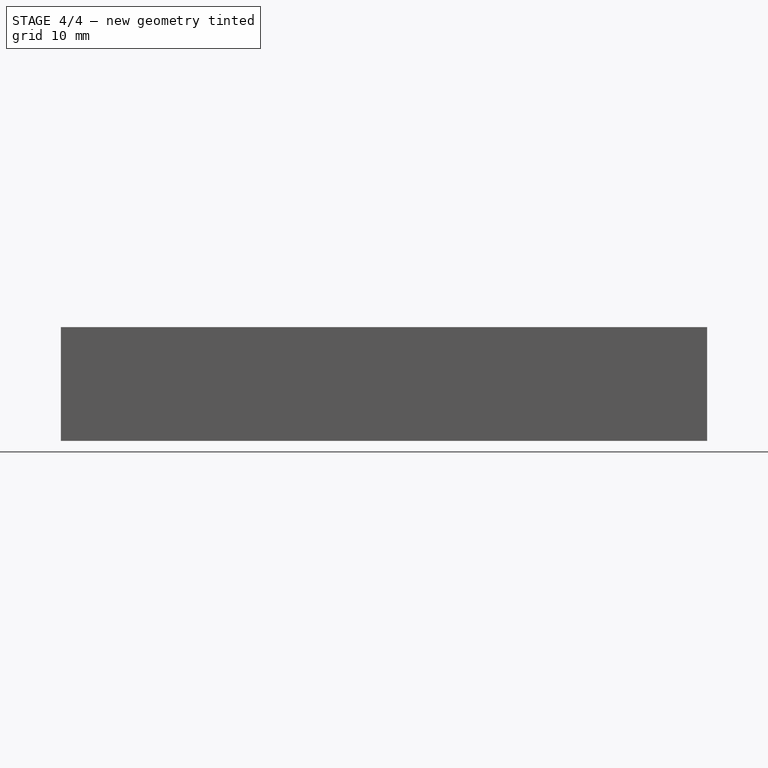
[diagram: stage 4 of 4 — front view after this stage's code; geometry added in this stage tinted green]
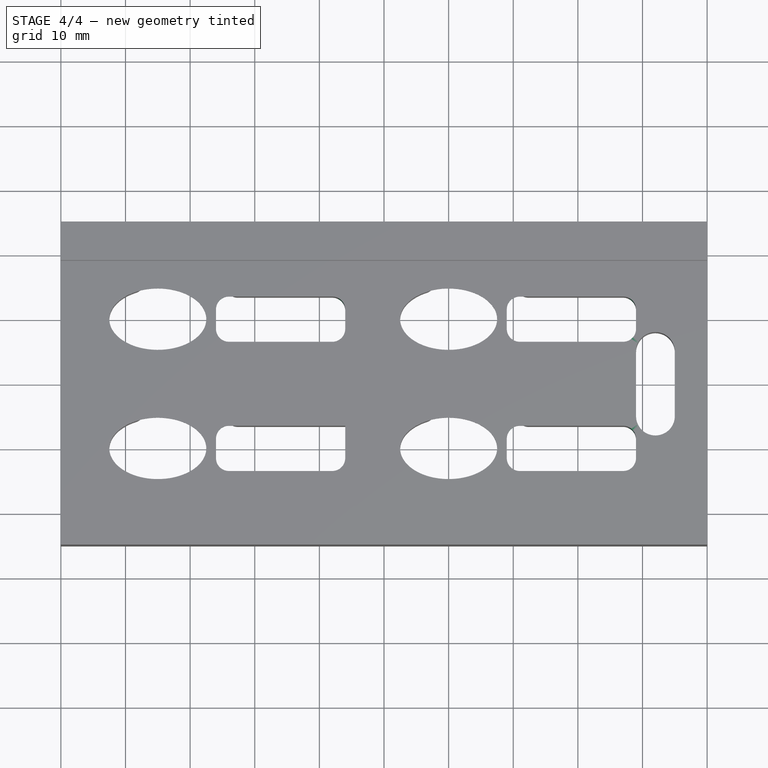
[diagram: stage 4 of 4 — top view after this stage's code; geometry added in this stage tinted green]
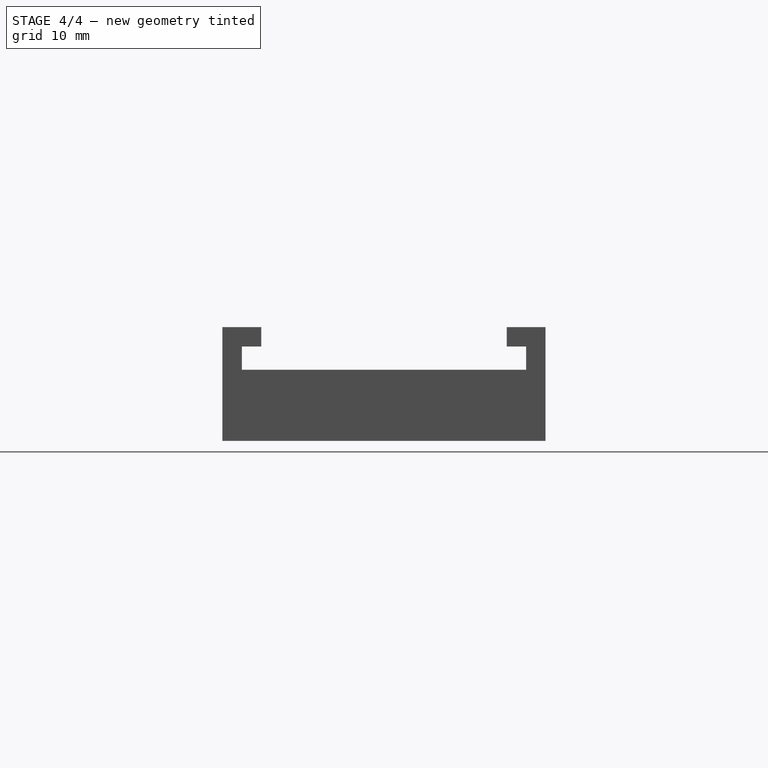
[diagram: stage 4 of 4 — right view after this stage's code; geometry added in this stage tinted green]
FEATURE [PartDesign::Fillet] Fillet
  Base = -> Pocket003 [Edge103,Edge101,Edge143,Edge141,Edge123,Edge121,Edge51,Edge47,Edge95,Edge99,Edge139,Edge135,Edge55,Edge115,Edge119,Edge59,Edge113,Edge116,Edge61,Edge53,Edge133,Edge93,Edge136,Edge129,Edge131,Edge91,Edge111,Edge8,Edge109,Edge6,Edge89,Edge96]
  BaseFeature = -> Pocket003
  Radius = 2
  SupportTransform = false
  UseAllEdges = false
FEATURE [Sketcher::SketchObject] Sketch009
  ExternalGeometry = -> [Fillet]
  FullyConstrained = false
  MapMode = 5
  Support = -> [XY_Plane]
  sketch-geometry (45):
    g0: LineSegment StartX=-42.52 StartY=10 StartZ=0 EndX=-6 EndY=10 EndZ=0
    g1: LineSegment StartX=-27.8 StartY=3.05168 StartZ=0 EndX=-27.2985 EndY=9.43914 EndZ=0
    g2: LineSegment StartX=-26.3015 StartY=9.43914 StartZ=0 EndX=-25.8 EndY=3.05168 EndZ=0
    g3: LineSegment StartX=-25.8 StartY=3.05168 StartZ=0 EndX=-27.8 EndY=3.05168 EndZ=0
    g4: ArcOfCircle CenterX=-26.8 CenterY=9.4 CenterZ=0 NormalX=0 NormalY=0 NormalZ=1 AngleXU=0 Radius=0.5 StartAngle=0.0783578 EndAngle=3.06323
    g5: LineSegment StartX=-26.8 StartY=9.4 StartZ=0 EndX=-26.8 EndY=3.05168 EndZ=0
    g6: LineSegment StartX=-27.8 StartY=16.9483 StartZ=0 EndX=-27.2985 EndY=10.5609 EndZ=0
    g7: LineSegment StartX=-26.3015 StartY=10.5609 StartZ=0 EndX=-25.8 EndY=16.9483 EndZ=0
    g8: LineSegment StartX=-25.8 StartY=16.9483 StartZ=0 EndX=-27.8 EndY=16.9483 EndZ=0
    g9: LineSegment StartX=-26.8 StartY=10.6 StartZ=0 EndX=-26.8 EndY=16.9483 EndZ=0
    g10: ArcOfCircle CenterX=-26.8 CenterY=10.6 CenterZ=0 NormalX=0 NormalY=0 NormalZ=1 AngleXU=0 Radius=0.5 StartAngle=3.21995 EndAngle=6.20483
    g11: GeomPoint X=-8.63144 Y=10 Z=0
    g12: LineSegment StartX=17.2 StartY=3.05168 StartZ=0 EndX=17.7015 EndY=9.43914 EndZ=0
    g13: LineSegment StartX=18.6985 StartY=9.43914 StartZ=0 EndX=19.2 EndY=3.05168 EndZ=0
    g14: LineSegment StartX=19.2 StartY=3.05168 StartZ=0 EndX=17.2 EndY=3.05168 EndZ=0
    g15: ArcOfCircle CenterX=18.2 CenterY=9.4 CenterZ=0 NormalX=0 NormalY=0 NormalZ=1 AngleXU=0 Radius=0.5 StartAngle=0.0783578 EndAngle=3.06323
    g16: LineSegment StartX=18.2 StartY=9.4 StartZ=0 EndX=18.2 EndY=3.05168 EndZ=0
    g17: LineSegment StartX=17.2 StartY=16.9483 StartZ=0 EndX=17.7015 EndY=10.5609 EndZ=0
    g18: LineSegment StartX=18.6985 StartY=10.5609 StartZ=0 EndX=19.2 EndY=16.9483 EndZ=0
    g19: LineSegment StartX=19.2 StartY=16.9483 StartZ=0 EndX=17.2 EndY=16.9483 EndZ=0
    g20: LineSegment StartX=18.2 StartY=10.6 StartZ=0 EndX=18.2 EndY=16.9483 EndZ=0
    g21: ArcOfCircle CenterX=18.2 CenterY=10.6 CenterZ=0 NormalX=0 NormalY=0 NormalZ=1 AngleXU=0 Radius=0.5 StartAngle=3.21995 EndAngle=6.20483
    g22: LineSegment StartX=-27.8 StartY=3.05168 StartZ=0 EndX=17.2 EndY=3.05168 EndZ=0
    g23: LineSegment StartX=-27.8 StartY=-16.9483 StartZ=0 EndX=-27.2985 EndY=-10.5609 EndZ=0
    g24: LineSegment StartX=-26.3015 StartY=-10.5609 StartZ=0 EndX=-25.8 EndY=-16.9483 EndZ=0
    g25: LineSegment StartX=-25.8 StartY=-16.9483 StartZ=0 EndX=-27.8 EndY=-16.9483 EndZ=0
    g26: ArcOfCircle CenterX=-26.8 CenterY=-10.6 CenterZ=0 NormalX=0 NormalY=0 NormalZ=1 AngleXU=0 Radius=0.5 StartAngle=0.0783578 EndAngle=3.06323
    g27: LineSegment StartX=-26.8 StartY=-10.6 StartZ=0 EndX=-26.8 EndY=-16.9483 EndZ=0
    g28: LineSegment StartX=-27.8 StartY=-3.05168 StartZ=0 EndX=-27.2985 EndY=-9.43914 EndZ=0
    g29: LineSegment StartX=-26.3015 StartY=-9.43914 StartZ=0 EndX=-25.8 EndY=-3.05168 EndZ=0
    g30: LineSegment StartX=-25.8 StartY=-3.05168 StartZ=0 EndX=-27.8 EndY=-3.05168 EndZ=0
    g31: LineSegment StartX=-26.8 StartY=-9.4 StartZ=0 EndX=-26.8 EndY=-3.05168 EndZ=0
    g32: ArcOfCircle CenterX=-26.8 CenterY=-9.4 CenterZ=0 NormalX=0 NormalY=0 NormalZ=1 AngleXU=0 Radius=0.5 StartAngle=3.21995 EndAngle=6.20483
    g33: LineSegment StartX=-27.8 StartY=3.05168 StartZ=0 EndX=-27.8 EndY=-16.9483 EndZ=0
    g34: LineSegment StartX=17.2 StartY=-16.9483 StartZ=0 EndX=17.7015 EndY=-10.5609 EndZ=0
    g35: LineSegment StartX=18.6985 StartY=-10.5609 StartZ=0 EndX=19.2 EndY=-16.9483 EndZ=0
    g36: LineSegment StartX=19.2 StartY=-16.9483 StartZ=0 EndX=17.2 EndY=-16.9483 EndZ=0
    g37: ArcOfCircle CenterX=18.2 CenterY=-10.6 CenterZ=0 NormalX=0 NormalY=0 NormalZ=1 AngleXU=0 Radius=0.5 StartAngle=0.0783578 EndAngle=3.06323
    g38: LineSegment StartX=18.2 StartY=-10.6 StartZ=0 EndX=18.2 EndY=-16.9483 EndZ=0
    g39: LineSegment StartX=17.2 StartY=-3.05168 StartZ=0 EndX=17.7015 EndY=-9.43914 EndZ=0
    g40: LineSegment StartX=18.6985 StartY=-9.43914 StartZ=0 EndX=19.2 EndY=-3.05168 EndZ=0
    g41: LineSegment StartX=19.2 StartY=-3.05168 StartZ=0 EndX=17.2 EndY=-3.05168 EndZ=0
    g42: LineSegment StartX=18.2 StartY=-9.4 StartZ=0 EndX=18.2 EndY=-3.05168 EndZ=0
    g43: ArcOfCircle CenterX=18.2 CenterY=-9.4 CenterZ=0 NormalX=0 NormalY=0 NormalZ=1 AngleXU=0 Radius=0.5 StartAngle=3.21995 EndAngle=6.20483
    g44: LineSegment StartX=-27.8 StartY=-16.9483 StartZ=0 EndX=17.2 EndY=-16.9483 EndZ=0
  constraints (114):
    c: Horizontal(g0)
    c: DistanceX(g0,g0) = 36.52
    c: DistanceY(g0,g-1) = -10
    c: Coincident(g3,g1)
    c: Horizontal(g3)
    c: Tangent(g1,g4) = 1.5708
    c: Tangent(g2,g4) = 1.5708
    c: DistanceX(g3,g3) = 2
    c: Coincident(g5,g4)
    c: Vertical(g5)
    c: Symmetric(g2,g1,g5)
    c: Radius(g4) = 0.5
    c: DistanceY(g4,g0) = 0.6
    c: DistanceX(g5,g-1) = 26.8
    c: Coincident(g3,g2)
    c: DistanceX(g0,g-1) = 6
    c: Coincident(g8,g6)
    c: Horizontal(g8)
    c: Tangent(g6,g10) = -1.5708
    c: Tangent(g7,g10) = -1.5708
    c: Coincident(g9,g10)
    c: Vertical(g9)
    c: Symmetric(g7,g6,g9)
    c: Radius(g10) = 0.5
    c: Coincident(g8,g7)
    c: Vertical(g9,g4)
    c: Equal(g8,g3)
    c: Equal(g9,g5)
    c: DistanceY(g0,g9) = 0.6
    c: PointOnObject(g6,g-4)
    c: Coincident(g14,g12)
    c: Horizontal(g14)
    c: Tangent(g12,g15) = 1.5708
    c: Tangent(g13,g15) = 1.5708
    c: Equal(g3,g14) = 2
    c: Coincident(g16,g15)
    c: Vertical(g16)
    c: Symmetric(g13,g12,g16)
    c: Equal(g4,g15) = 0.5
    c: Coincident(g14,g13)
    c: Coincident(g19,g17)
    c: Horizontal(g19)
    c: Tangent(g17,g21) = -1.5708
    c: Tangent(g18,g21) = -1.5708
    c: Coincident(g20,g21)
    c: Vertical(g20)
    c: Symmetric(g18,g17,g20)
    c: Equal(g10,g21) = 0.5
    c: Coincident(g19,g18)
    c: Vertical(g20,g15)
    c: Equal(g19,g14)
    c: Equal(g20,g16)
    c: Coincident(g1,g22)
    c: Coincident(g12,g22)
    c: Distance(g22) = 45
    c: Angle(g22) = 0
    c: Coincident(g25,g23)
    c: Horizontal(g25)
    c: Tangent(g23,g26) = 1.5708
    c: Tangent(g24,g26) = 1.5708
    c: Equal(g3,g25) = 2
    c: Coincident(g27,g26)
    c: Vertical(g27)
    c: Symmetric(g24,g23,g27)
    c: Equal(g4,g26) = 0.5
    c: Coincident(g25,g24)
    c: Coincident(g30,g28)
    c: Horizontal(g30)
    c: Tangent(g28,g32) = -1.5708
    c: Tangent(g29,g32) = -1.5708
    c: Coincident(g31,g32)
    c: Vertical(g31)
    c: Symmetric(g29,g28,g31)
    c: Equal(g10,g32) = 0.5
    c: Coincident(g30,g29)
    c: Vertical(g31,g26)
    c: Equal(g30,g25)
    c: Equal(g31,g27)
    c: Coincident(g1,g33)
    c: Coincident(g23,g33)
    c: Distance(g33) = 20
    c: Perpendicular(g33,g22)
    c: Coincident(g36,g34)
    c: Horizontal(g36)
    c: Tangent(g34,g37) = 1.5708
    c: Tangent(g35,g37) = 1.5708
    c: Equal(g3,g36) = 2
    c: Coincident(g38,g37)
    c: Vertical(g38)
    c: Symmetric(g35,g34,g38)
    c: Equal(g4,g37) = 0.5
    c: Coincident(g36,g35)
    c: Coincident(g41,g39)
    c: Horizontal(g41)
    c: Tangent(g39,g43) = -1.5708
    c: Tangent(g40,g43) = -1.5708
    c: Coincident(g42,g43)
    c: Vertical(g42)
    c: Symmetric(g40,g39,g42)
    c: Equal(g10,g43) = 0.5
    c: Coincident(g41,g40)
    c: Vertical(g42,g37)
    c: Equal(g41,g36)
    c: Equal(g42,g38)
    c: Coincident(g23,g44)
    c: Coincident(g34,g44)
    c: Equal(g22,g44)
    c: Parallel(g44,g22)
    c: Equal(g42,g27)
    c: Equal(g31,g16)
    c: Equal(g20,g5)
    c: DistanceY(g26,g31) = 1.2
    c: DistanceY(g37,g42) = 1.2
    c: DistanceY(g15,g20) = 1.2
FEATURE [PartDesign::Pad] Pad003
  BaseFeature = -> Fillet
  Direction = (0,0,1)
  Length = 11
  Length2 = 10
  Profile = -> Sketch009
  ReferenceAxis = -> Sketch009 [N_Axis]
  Refine = true
  Reversed = true
  Type = 0
FEATURE [PartDesign::Body] Body
  Group = -> [Sketch,Pad,Sketch001,Pocket,DatumPlane,Sketch003,Pocket001,Sketch005,Pad001,Mirrored,Sketch006,Pocket002,DatumPlane001,Sketch007,DatumPlane002,Pad002,Sketch008,Pocket003,Fillet,Sketch009,Pad003]
  Origin = -> Origin
  Tip = -> Pad003
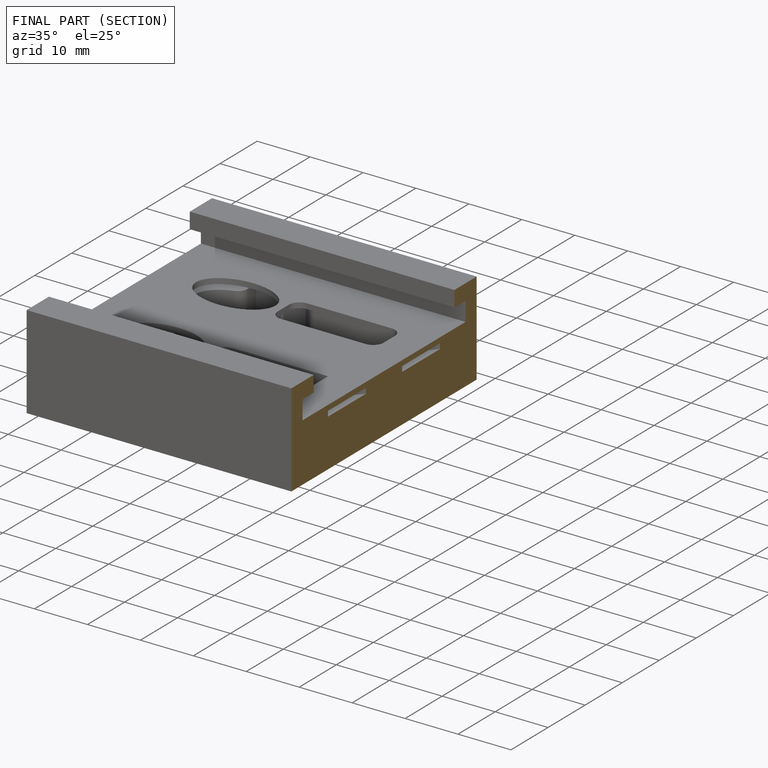
[diagram: finished part — half-section view (interior)]
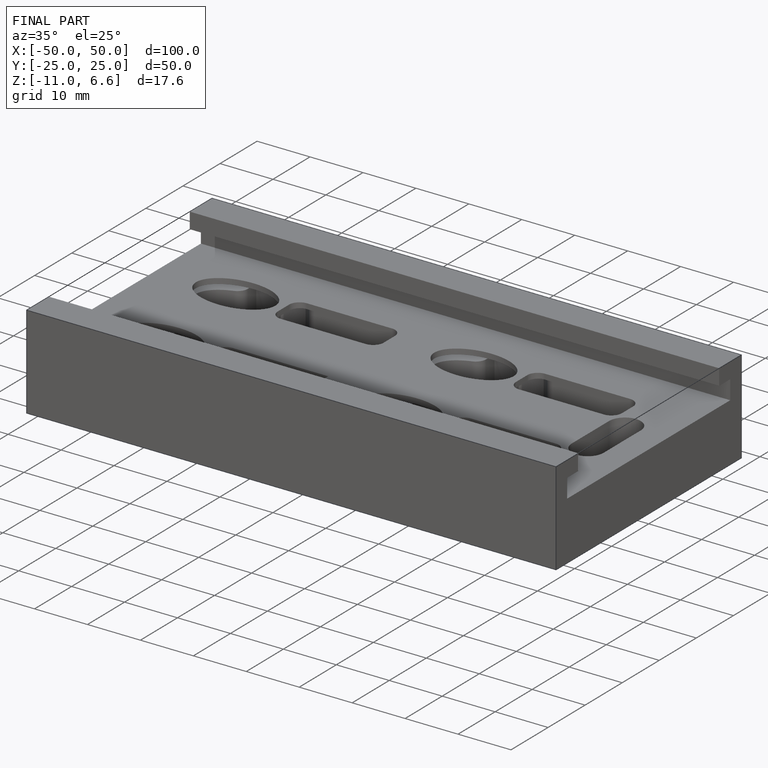
[diagram: finished part — iso view with bounding-box wireframe]
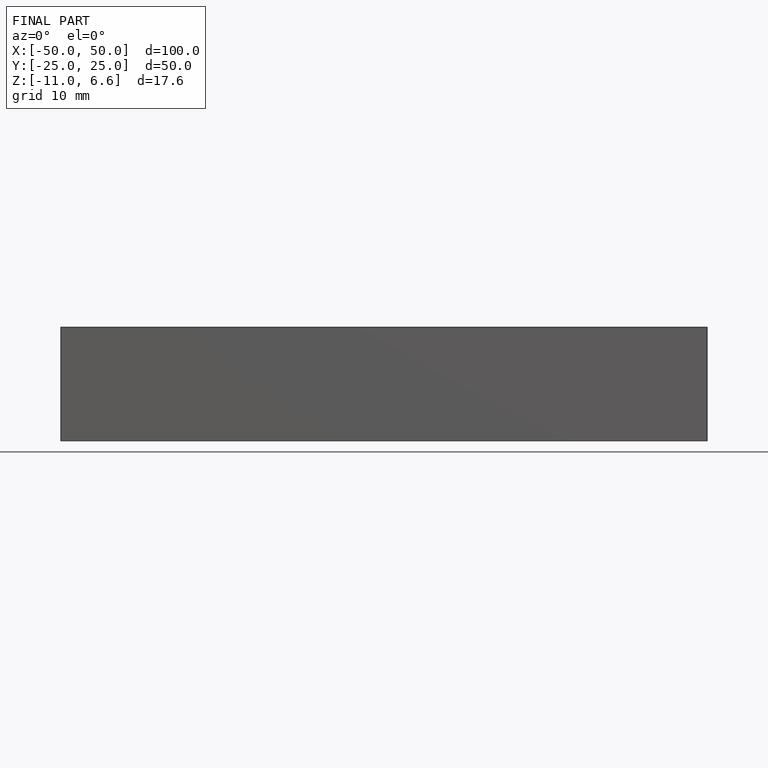
[diagram: finished part — front view with bounding-box wireframe]
